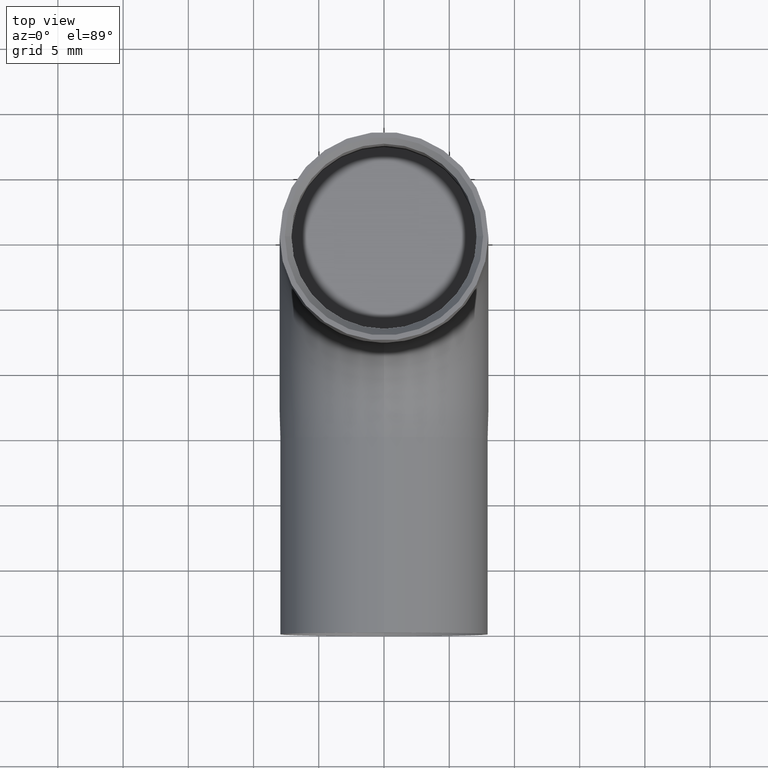
[diagram: clean part render]
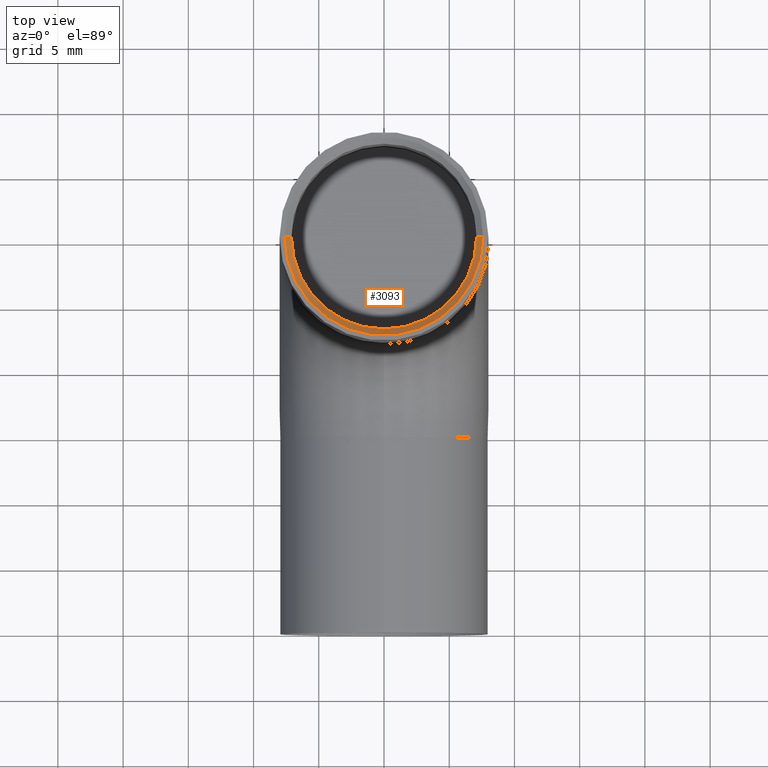
[diagram: same view with one face highlighted and labeled with its STEP entity id]
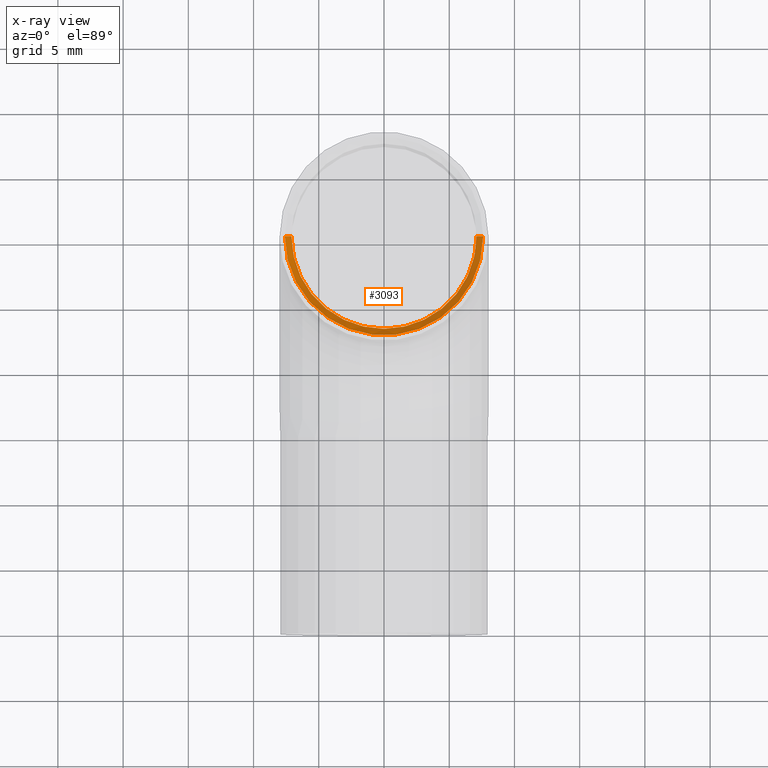
[diagram: x-ray of the same camera — body ghosted, the highlighted face saturated]
A machine part, top view. The second image highlights one B-rep face of the part: STEP entity #3093.
The next image is the same camera in x-ray: the body ghosted, the highlighted face saturated — about 0% of this face is hidden behind the body in this view.
In plain terms, the highlighted conical surface has half-angle 45 deg.
Its self-contained STEP definition (entity closure, byte-faithful):
#201 = DIRECTION ( 'NONE',  ( 1.000000000000000000, 0.000000000000000000, 0.000000000000000000 ) ) ;
#514 = VECTOR ( 'NONE', #1538, 1000.000000000000114 ) ;
#998 = CIRCLE ( 'NONE', #3469, 7.099999999999999645 ) ;
#1209 = CIRCLE ( 'NONE', #5273, 7.099999999999999645 ) ;
#1500 = FACE_OUTER_BOUND ( 'NONE', #4985, .T. ) ;
#1538 = DIRECTION ( 'NONE',  ( 0.7071067811865469066, 0.000000000000000000, 0.7071067811865481278 ) ) ;
#2092 = VERTEX_POINT ( 'NONE', #2679 ) ;
#2248 = DIRECTION ( 'NONE',  ( 1.000000000000000000, 0.000000000000000000, 0.000000000000000000 ) ) ;
#2679 = CARTESIAN_POINT ( 'NONE',  ( 7.099999999999999645, 29.99999999999999645, 29.49999999999999289 ) ) ;
#2896 = VERTEX_POINT ( 'NONE', #8711 ) ;
#3093 = ADVANCED_FACE ( 'NONE', ( #1500 ), #9875, .F. ) ;
#3269 = CARTESIAN_POINT ( 'NONE',  ( 0.000000000000000000, 29.99999999999999645, 30.00000000000000000 ) ) ;
#3325 = CARTESIAN_POINT ( 'NONE',  ( 0.000000000000000000, 22.89999999999999503, 29.49999999999999289 ) ) ;
#3469 = AXIS2_PLACEMENT_3D ( 'NONE', #6114, #7056, #201 ) ;
#3486 = DIRECTION ( 'NONE',  ( 0.000000000000000000, -1.000000000000000000, 0.000000000000000000 ) ) ;
#3546 = CARTESIAN_POINT ( 'NONE',  ( 7.600000000000005862, 29.99999999999999645, 30.00000000000000000 ) ) ;
#3978 = CIRCLE ( 'NONE', #10110, 7.600000000000005862 ) ;
#4985 = EDGE_LOOP ( 'NONE', ( #10354, #6591, #11921, #7380, #7964 ) ) ;
#5051 = EDGE_CURVE ( 'NONE', #2896, #8543, #1209, .T. ) ;
#5273 = AXIS2_PLACEMENT_3D ( 'NONE', #10313, #11150, #2248 ) ;
#6114 = CARTESIAN_POINT ( 'NONE',  ( 0.000000000000000000, 29.99999999999999645, 29.49999999999999289 ) ) ;
#6297 = VERTEX_POINT ( 'NONE', #3546 ) ;
#6591 = ORIENTED_EDGE ( 'NONE', *, *, #8955, .T. ) ;
#6906 = VERTEX_POINT ( 'NONE', #10406 ) ;
#7056 = DIRECTION ( 'NONE',  ( -0.000000000000000000, -0.000000000000000000, 1.000000000000000000 ) ) ;
#7210 = CARTESIAN_POINT ( 'NONE',  ( -7.600000000000005862, 29.99999999999999645, 30.00000000000000000 ) ) ;
#7376 = DIRECTION ( 'NONE',  ( 1.000000000000000000, 0.000000000000000000, 0.000000000000000000 ) ) ;
#7380 = ORIENTED_EDGE ( 'NONE', *, *, #10814, .F. ) ;
#7964 = ORIENTED_EDGE ( 'NONE', *, *, #9291, .F. ) ;
#8266 = DIRECTION ( 'NONE',  ( -0.000000000000000000, -0.000000000000000000, 1.000000000000000000 ) ) ;
#8419 = DIRECTION ( 'NONE',  ( -0.000000000000000000, 1.608122649676636601E-16, -1.000000000000000000 ) ) ;
#8430 = CARTESIAN_POINT ( 'NONE',  ( 7.600000000000005862, 29.99999999999999645, 30.00000000000000000 ) ) ;
#8543 = VERTEX_POINT ( 'NONE', #3325 ) ;
#8578 = AXIS2_PLACEMENT_3D ( 'NONE', #3269, #8266, #7376 ) ;
#8711 = CARTESIAN_POINT ( 'NONE',  ( -7.099999999999999645, 29.99999999999999645, 29.49999999999999289 ) ) ;
#8955 = EDGE_CURVE ( 'NONE', #2896, #6906, #11586, .T. ) ;
#9291 = EDGE_CURVE ( 'NONE', #8543, #2092, #998, .T. ) ;
#9722 = EDGE_CURVE ( 'NONE', #6297, #6906, #3978, .T. ) ;
#9875 = CONICAL_SURFACE ( 'NONE', #8578, 7.600000000000005862, 0.7853981633974473908 ) ;
#10003 = DIRECTION ( 'NONE',  ( -0.7071067811865469066, 8.659560562354925463E-17, 0.7071067811865481278 ) ) ;
#10110 = AXIS2_PLACEMENT_3D ( 'NONE', #10341, #8419, #3486 ) ;
#10313 = CARTESIAN_POINT ( 'NONE',  ( 0.000000000000000000, 29.99999999999999645, 29.49999999999999289 ) ) ;
#10341 = CARTESIAN_POINT ( 'NONE',  ( 0.000000000000000000, 29.99999999999999645, 30.00000000000000000 ) ) ;
#10354 = ORIENTED_EDGE ( 'NONE', *, *, #5051, .F. ) ;
#10406 = CARTESIAN_POINT ( 'NONE',  ( -7.600000000000005862, 29.99999999999999645, 30.00000000000000000 ) ) ;
#10814 = EDGE_CURVE ( 'NONE', #2092, #6297, #12177, .T. ) ;
#11118 = VECTOR ( 'NONE', #10003, 1000.000000000000114 ) ;
#11150 = DIRECTION ( 'NONE',  ( -0.000000000000000000, -0.000000000000000000, 1.000000000000000000 ) ) ;
#11586 = LINE ( 'NONE', #7210, #11118 ) ;
#11921 = ORIENTED_EDGE ( 'NONE', *, *, #9722, .F. ) ;
#12177 = LINE ( 'NONE', #8430, #514 ) ;